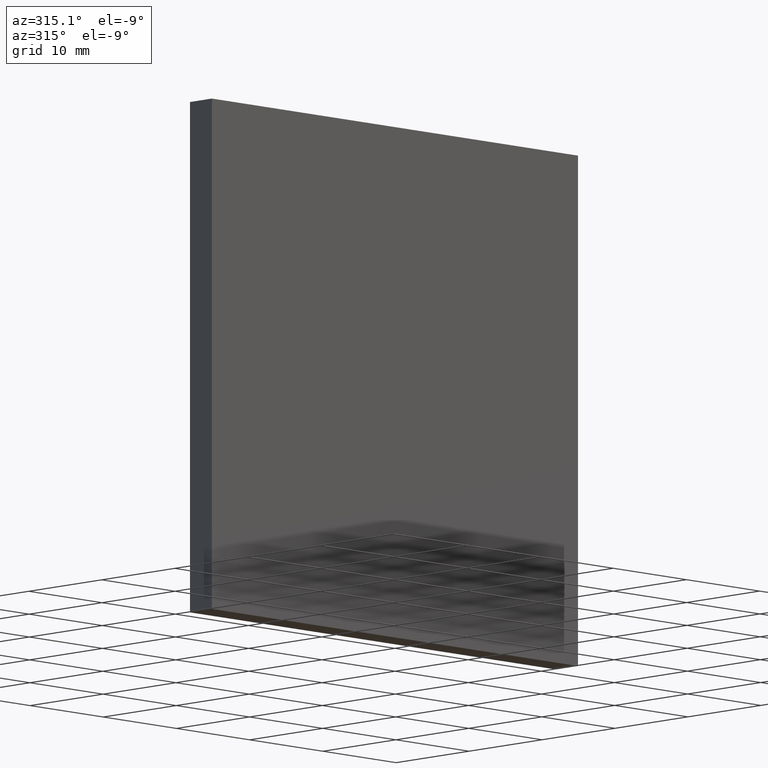
[diagram: clean part render]
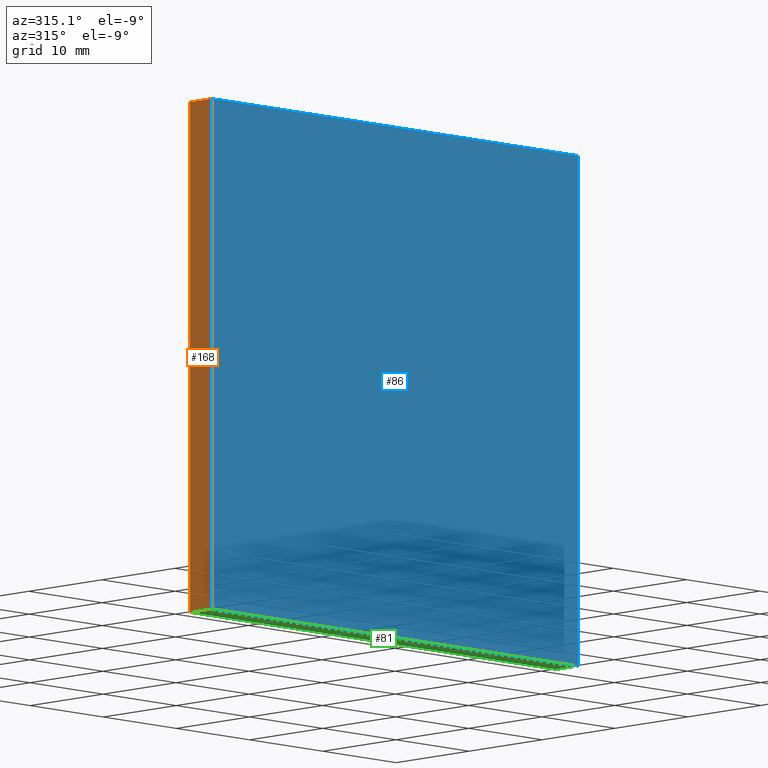
[diagram: same view with three faces highlighted in distinct colors, each labeled with its STEP entity id]
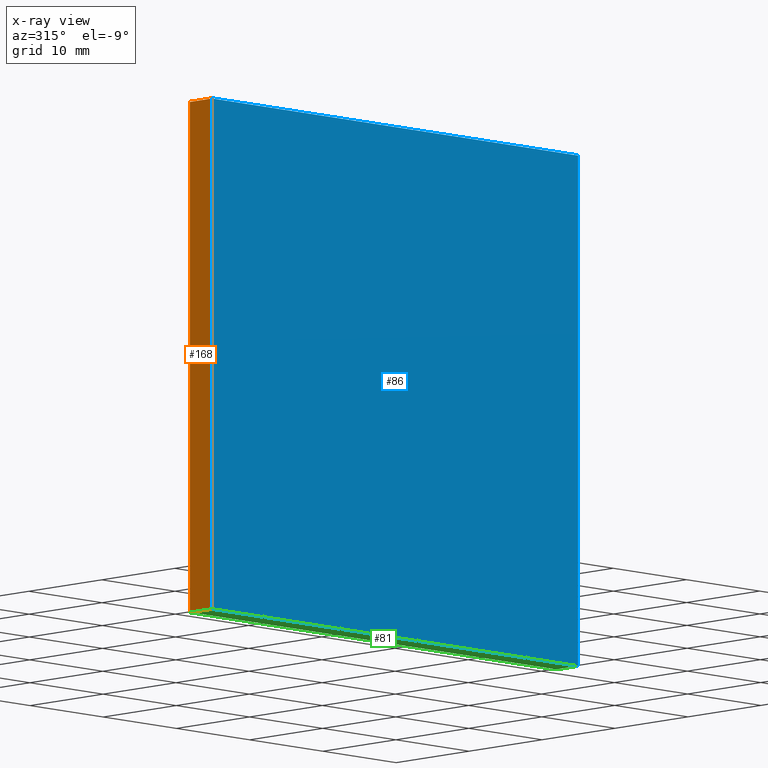
[diagram: x-ray of the same camera — body ghosted, the three highlighted faces saturated]
A machine part, auxiliary view with three faces highlighted in distinct colors.
The next image is the same camera in x-ray (body ghosted, the three faces saturated) — at least one of them is partly hidden behind the body in this view.
Their STEP definitions:

[orange] entity #168 — the highlighted planar face has unit normal (1, 0, -0).
#1 = EDGE_CURVE ( 'NONE', #89, #76, #161, .T. ) ;
#4 = ORIENTED_EDGE ( 'NONE', *, *, #182, .F. ) ;
#8 = DIRECTION ( 'NONE',  ( -0.0000000000000000000, -1.000000000000000000, -0.0000000000000000000 ) ) ;
#10 = CARTESIAN_POINT ( 'NONE',  ( -24.99999999999999300, 3.000000000000000000, 25.00000000000000700 ) ) ;
#13 = CARTESIAN_POINT ( 'NONE',  ( -25.00000000000000000, 3.000000000000000000, -24.99999999999999300 ) ) ;
#16 = LINE ( 'NONE', #49, #156 ) ;
#19 = EDGE_CURVE ( 'NONE', #76, #171, #16, .T. ) ;
#20 = ORIENTED_EDGE ( 'NONE', *, *, #1, .T. ) ;
#24 = CARTESIAN_POINT ( 'NONE',  ( -24.99999999999999300, 3.000000000000000000, 25.00000000000000700 ) ) ;
#29 = DIRECTION ( 'NONE',  ( -1.387778780781445400E-016, 0.0000000000000000000, -1.000000000000000000 ) ) ;
#31 = LINE ( 'NONE', #13, #53 ) ;
#49 = CARTESIAN_POINT ( 'NONE',  ( -25.00000000000000000, 0.0000000000000000000, -24.99999999999999300 ) ) ;
#52 = DIRECTION ( 'NONE',  ( 1.387778780781445700E-016, 0.0000000000000000000, 1.000000000000000000 ) ) ;
#53 = VECTOR ( 'NONE', #136, 1000.000000000000000 ) ;
#74 = EDGE_LOOP ( 'NONE', ( #138, #188, #4, #20 ) ) ;
#75 = PLANE ( 'NONE',  #100 ) ;
#76 = VERTEX_POINT ( 'NONE', #162 ) ;
#89 = VERTEX_POINT ( 'NONE', #134 ) ;
#99 = VECTOR ( 'NONE', #8, 1000.000000000000000 ) ;
#100 = AXIS2_PLACEMENT_3D ( 'NONE', #150, #185, #29 ) ;
#106 = CARTESIAN_POINT ( 'NONE',  ( -24.99999999999999300, 0.0000000000000000000, 25.00000000000000700 ) ) ;
#128 = VERTEX_POINT ( 'NONE', #24 ) ;
#134 = CARTESIAN_POINT ( 'NONE',  ( -25.00000000000000000, 3.000000000000000000, -24.99999999999999300 ) ) ;
#136 = DIRECTION ( 'NONE',  ( 1.387778780781445700E-016, 0.0000000000000000000, 1.000000000000000000 ) ) ;
#138 = ORIENTED_EDGE ( 'NONE', *, *, #19, .T. ) ;
#143 = DIRECTION ( 'NONE',  ( -0.0000000000000000000, -1.000000000000000000, -0.0000000000000000000 ) ) ;
#150 = CARTESIAN_POINT ( 'NONE',  ( -25.00000000000000000, 3.000000000000000000, -24.99999999999999300 ) ) ;
#151 = EDGE_CURVE ( 'NONE', #128, #171, #198, .T. ) ;
#153 = FACE_OUTER_BOUND ( 'NONE', #74, .T. ) ;
#156 = VECTOR ( 'NONE', #52, 1000.000000000000000 ) ;
#161 = LINE ( 'NONE', #200, #99 ) ;
#162 = CARTESIAN_POINT ( 'NONE',  ( -25.00000000000000000, 0.0000000000000000000, -24.99999999999999300 ) ) ;
#168 = ADVANCED_FACE ( 'NONE', ( #153 ), #75, .F. ) ;
#171 = VERTEX_POINT ( 'NONE', #106 ) ;
#182 = EDGE_CURVE ( 'NONE', #89, #128, #31, .T. ) ;
#185 = DIRECTION ( 'NONE',  ( 1.000000000000000000, 0.0000000000000000000, -1.387778780781445400E-016 ) ) ;
#188 = ORIENTED_EDGE ( 'NONE', *, *, #151, .F. ) ;
#195 = VECTOR ( 'NONE', #143, 1000.000000000000000 ) ;
#198 = LINE ( 'NONE', #10, #195 ) ;
#200 = CARTESIAN_POINT ( 'NONE',  ( -25.00000000000000000, 3.000000000000000000, -24.99999999999999300 ) ) ;

[blue] entity #86 — the highlighted planar face has unit normal (0, 1, 0).
#3 = AXIS2_PLACEMENT_3D ( 'NONE', #137, #54, #132 ) ;
#9 = EDGE_CURVE ( 'NONE', #171, #57, #113, .T. ) ;
#16 = LINE ( 'NONE', #49, #156 ) ;
#19 = EDGE_CURVE ( 'NONE', #76, #171, #16, .T. ) ;
#22 = PLANE ( 'NONE',  #3 ) ;
#26 = LINE ( 'NONE', #103, #178 ) ;
#30 = ORIENTED_EDGE ( 'NONE', *, *, #191, .F. ) ;
#46 = ORIENTED_EDGE ( 'NONE', *, *, #9, .F. ) ;
#49 = CARTESIAN_POINT ( 'NONE',  ( -25.00000000000000000, 0.0000000000000000000, -24.99999999999999300 ) ) ;
#52 = DIRECTION ( 'NONE',  ( 1.387778780781445700E-016, 0.0000000000000000000, 1.000000000000000000 ) ) ;
#54 = DIRECTION ( 'NONE',  ( 0.0000000000000000000, 1.000000000000000000, 0.0000000000000000000 ) ) ;
#56 = DIRECTION ( 'NONE',  ( -1.000000000000000000, -0.0000000000000000000, -0.0000000000000000000 ) ) ;
#57 = VERTEX_POINT ( 'NONE', #104 ) ;
#58 = EDGE_CURVE ( 'NONE', #201, #76, #174, .T. ) ;
#65 = CARTESIAN_POINT ( 'NONE',  ( -24.99999999999999300, 0.0000000000000000000, 25.00000000000000700 ) ) ;
#76 = VERTEX_POINT ( 'NONE', #162 ) ;
#82 = ORIENTED_EDGE ( 'NONE', *, *, #19, .F. ) ;
#86 = ADVANCED_FACE ( 'NONE', ( #149 ), #22, .F. ) ;
#102 = VECTOR ( 'NONE', #166, 1000.000000000000000 ) ;
#103 = CARTESIAN_POINT ( 'NONE',  ( 25.00000000000000000, 0.0000000000000000000, -24.99999999999999300 ) ) ;
#104 = CARTESIAN_POINT ( 'NONE',  ( 25.00000000000000700, 0.0000000000000000000, 25.00000000000000700 ) ) ;
#106 = CARTESIAN_POINT ( 'NONE',  ( -24.99999999999999300, 0.0000000000000000000, 25.00000000000000700 ) ) ;
#108 = VECTOR ( 'NONE', #56, 1000.000000000000000 ) ;
#113 = LINE ( 'NONE', #65, #102 ) ;
#114 = EDGE_LOOP ( 'NONE', ( #30, #46, #82, #123 ) ) ;
#123 = ORIENTED_EDGE ( 'NONE', *, *, #58, .F. ) ;
#126 = CARTESIAN_POINT ( 'NONE',  ( 25.00000000000000000, 0.0000000000000000000, -24.99999999999999300 ) ) ;
#132 = DIRECTION ( 'NONE',  ( 0.0000000000000000000, -0.0000000000000000000, 1.000000000000000000 ) ) ;
#137 = CARTESIAN_POINT ( 'NONE',  ( 0.0000000000000000000, 0.0000000000000000000, 0.0000000000000000000 ) ) ;
#149 = FACE_OUTER_BOUND ( 'NONE', #114, .T. ) ;
#156 = VECTOR ( 'NONE', #52, 1000.000000000000000 ) ;
#162 = CARTESIAN_POINT ( 'NONE',  ( -25.00000000000000000, 0.0000000000000000000, -24.99999999999999300 ) ) ;
#164 = CARTESIAN_POINT ( 'NONE',  ( -25.00000000000000000, 0.0000000000000000000, -24.99999999999999300 ) ) ;
#166 = DIRECTION ( 'NONE',  ( 1.000000000000000000, 0.0000000000000000000, 0.0000000000000000000 ) ) ;
#171 = VERTEX_POINT ( 'NONE', #106 ) ;
#174 = LINE ( 'NONE', #164, #108 ) ;
#178 = VECTOR ( 'NONE', #192, 1000.000000000000000 ) ;
#191 = EDGE_CURVE ( 'NONE', #57, #201, #26, .T. ) ;
#192 = DIRECTION ( 'NONE',  ( -1.387778780781445700E-016, -0.0000000000000000000, -1.000000000000000000 ) ) ;
#201 = VERTEX_POINT ( 'NONE', #126 ) ;

[green] entity #81 — the highlighted planar face has unit normal (0, 0, 1).
#1 = EDGE_CURVE ( 'NONE', #89, #76, #161, .T. ) ;
#8 = DIRECTION ( 'NONE',  ( -0.0000000000000000000, -1.000000000000000000, -0.0000000000000000000 ) ) ;
#23 = ORIENTED_EDGE ( 'NONE', *, *, #1, .F. ) ;
#35 = CARTESIAN_POINT ( 'NONE',  ( 25.00000000000000000, 3.000000000000000000, -24.99999999999999300 ) ) ;
#39 = ORIENTED_EDGE ( 'NONE', *, *, #173, .T. ) ;
#43 = VERTEX_POINT ( 'NONE', #35 ) ;
#45 = CARTESIAN_POINT ( 'NONE',  ( -25.00000000000000000, 3.000000000000000000, -24.99999999999999300 ) ) ;
#48 = CARTESIAN_POINT ( 'NONE',  ( 25.00000000000000000, 3.000000000000000000, -24.99999999999999300 ) ) ;
#56 = DIRECTION ( 'NONE',  ( -1.000000000000000000, -0.0000000000000000000, -0.0000000000000000000 ) ) ;
#58 = EDGE_CURVE ( 'NONE', #201, #76, #174, .T. ) ;
#60 = LINE ( 'NONE', #45, #129 ) ;
#71 = LINE ( 'NONE', #48, #189 ) ;
#72 = DIRECTION ( 'NONE',  ( -0.0000000000000000000, -1.000000000000000000, -0.0000000000000000000 ) ) ;
#76 = VERTEX_POINT ( 'NONE', #162 ) ;
#79 = DIRECTION ( 'NONE',  ( 0.0000000000000000000, 0.0000000000000000000, 1.000000000000000000 ) ) ;
#81 = ADVANCED_FACE ( 'NONE', ( #142 ), #183, .F. ) ;
#84 = DIRECTION ( 'NONE',  ( 1.000000000000000000, 0.0000000000000000000, -0.0000000000000000000 ) ) ;
#89 = VERTEX_POINT ( 'NONE', #134 ) ;
#90 = CARTESIAN_POINT ( 'NONE',  ( -25.00000000000000000, 3.000000000000000000, -24.99999999999999300 ) ) ;
#91 = EDGE_LOOP ( 'NONE', ( #145, #23, #120, #39 ) ) ;
#92 = EDGE_CURVE ( 'NONE', #43, #89, #60, .T. ) ;
#99 = VECTOR ( 'NONE', #8, 1000.000000000000000 ) ;
#108 = VECTOR ( 'NONE', #56, 1000.000000000000000 ) ;
#117 = DIRECTION ( 'NONE',  ( -1.000000000000000000, -0.0000000000000000000, -0.0000000000000000000 ) ) ;
#120 = ORIENTED_EDGE ( 'NONE', *, *, #92, .F. ) ;
#126 = CARTESIAN_POINT ( 'NONE',  ( 25.00000000000000000, 0.0000000000000000000, -24.99999999999999300 ) ) ;
#129 = VECTOR ( 'NONE', #117, 1000.000000000000000 ) ;
#134 = CARTESIAN_POINT ( 'NONE',  ( -25.00000000000000000, 3.000000000000000000, -24.99999999999999300 ) ) ;
#142 = FACE_OUTER_BOUND ( 'NONE', #91, .T. ) ;
#145 = ORIENTED_EDGE ( 'NONE', *, *, #58, .T. ) ;
#161 = LINE ( 'NONE', #200, #99 ) ;
#162 = CARTESIAN_POINT ( 'NONE',  ( -25.00000000000000000, 0.0000000000000000000, -24.99999999999999300 ) ) ;
#164 = CARTESIAN_POINT ( 'NONE',  ( -25.00000000000000000, 0.0000000000000000000, -24.99999999999999300 ) ) ;
#173 = EDGE_CURVE ( 'NONE', #43, #201, #71, .T. ) ;
#174 = LINE ( 'NONE', #164, #108 ) ;
#183 = PLANE ( 'NONE',  #187 ) ;
#187 = AXIS2_PLACEMENT_3D ( 'NONE', #90, #79, #84 ) ;
#189 = VECTOR ( 'NONE', #72, 1000.000000000000000 ) ;
#200 = CARTESIAN_POINT ( 'NONE',  ( -25.00000000000000000, 3.000000000000000000, -24.99999999999999300 ) ) ;
#201 = VERTEX_POINT ( 'NONE', #126 ) ;